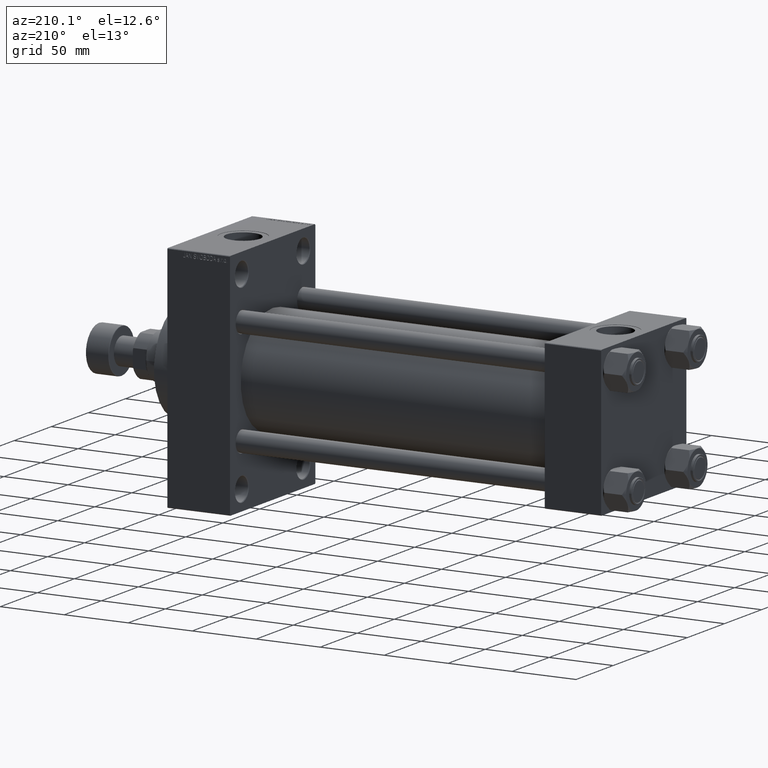
[diagram: clean part render]
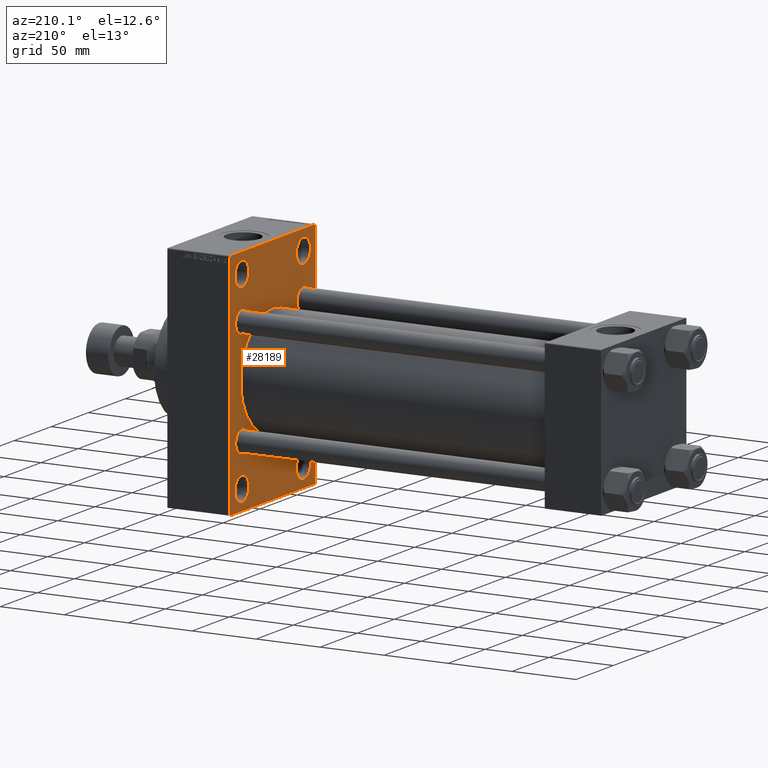
[diagram: same view with one face highlighted and labeled with its STEP entity id]
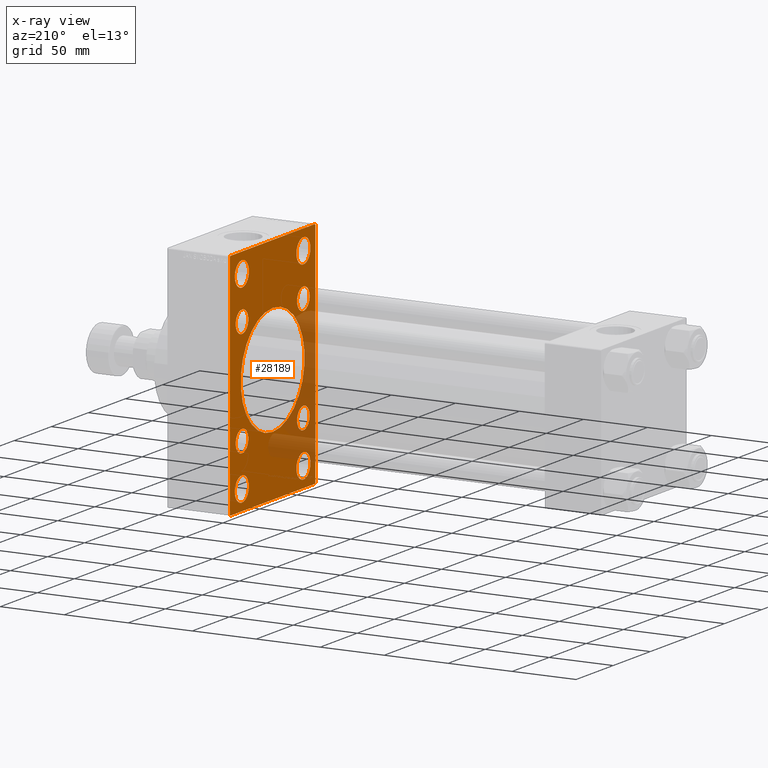
[diagram: x-ray of the same camera — body ghosted, the highlighted face saturated]
A machine part, auxiliary view. The second image highlights one B-rep face of the part: STEP entity #28189.
The next image is the same camera in x-ray: the body ghosted, the highlighted face saturated — about 21% of this face is hidden behind the body in this view.
In plain terms, the highlighted planar face has unit normal (-1, 0, 0).
Its self-contained STEP definition (entity closure, byte-faithful):
#112 = EDGE_CURVE ( 'NONE', #5302, #14758, #37099, .T. ) ;
#1189 = CARTESIAN_POINT ( 'NONE',  ( 290.0000000000000000, 57.00000000000003553, -90.00000000000000000 ) ) ;
#1723 = VERTEX_POINT ( 'NONE', #46791 ) ;
#1791 = CIRCLE ( 'NONE', #32092, 8.500000000000007105 ) ;
#1809 = DIRECTION ( 'NONE',  ( 1.000000000000000000, -0.000000000000000000, 0.000000000000000000 ) ) ;
#2068 = CARTESIAN_POINT ( 'NONE',  ( 290.0000000000000000, -57.50000000000002132, 89.49999999999997158 ) ) ;
#2081 = VECTOR ( 'NONE', #16700, 1000.000000000000000 ) ;
#2146 = CIRCLE ( 'NONE', #31684, 9.500000000000008882 ) ;
#2212 = CARTESIAN_POINT ( 'NONE',  ( 290.0000000000000000, -41.49999999999999289, -83.99999999999998579 ) ) ;
#2474 = VERTEX_POINT ( 'NONE', #38495 ) ;
#2723 = CARTESIAN_POINT ( 'NONE',  ( 290.0000000000000000, 57.49999999999997868, -90.00000000000000000 ) ) ;
#3120 = EDGE_CURVE ( 'NONE', #4985, #4850, #21633, .T. ) ;
#3144 = DIRECTION ( 'NONE',  ( 0.000000000000000000, 0.000000000000000000, 1.000000000000000000 ) ) ;
#3408 = CIRCLE ( 'NONE', #8869, 43.00000000000000000 ) ;
#3575 = ORIENTED_EDGE ( 'NONE', *, *, #37290, .T. ) ;
#3631 = ORIENTED_EDGE ( 'NONE', *, *, #45158, .T. ) ;
#3654 = CARTESIAN_POINT ( 'NONE',  ( 290.0000000000000000, -41.49999999999999289, 74.50000000000001421 ) ) ;
#3697 = CARTESIAN_POINT ( 'NONE',  ( 290.0000000000000000, -2.602085213965210642E-15, 43.00000000000000000 ) ) ;
#3774 = CARTESIAN_POINT ( 'NONE',  ( 290.0000000000000000, 57.49999999999997868, -89.49999999999995737 ) ) ;
#3799 = VERTEX_POINT ( 'NONE', #19931 ) ;
#3848 = DIRECTION ( 'NONE',  ( 1.000000000000000000, -0.000000000000000000, 0.000000000000000000 ) ) ;
#3999 = EDGE_CURVE ( 'NONE', #10457, #6478, #14065, .T. ) ;
#4810 = CARTESIAN_POINT ( 'NONE',  ( 290.0000000000000000, 2.663896022368408223E-15, -43.00000000000000000 ) ) ;
#4850 = VERTEX_POINT ( 'NONE', #40137 ) ;
#4851 = CIRCLE ( 'NONE', #34380, 43.00000000000000000 ) ;
#4985 = VERTEX_POINT ( 'NONE', #5052 ) ;
#5052 = CARTESIAN_POINT ( 'NONE',  ( 290.0000000000000000, -41.34999999999998721, 32.85000000000000142 ) ) ;
#5265 = EDGE_LOOP ( 'NONE', ( #11016, #26214 ) ) ;
#5281 = DIRECTION ( 'NONE',  ( 1.000000000000000000, -0.000000000000000000, 0.000000000000000000 ) ) ;
#5302 = VERTEX_POINT ( 'NONE', #21289 ) ;
#5744 = CIRCLE ( 'NONE', #27522, 8.500000000000007105 ) ;
#6028 = CARTESIAN_POINT ( 'NONE',  ( 290.0000000000000000, 41.50000000000000711, -84.00000000000000000 ) ) ;
#6478 = VERTEX_POINT ( 'NONE', #17586 ) ;
#6746 = DIRECTION ( 'NONE',  ( -1.000000000000000000, 0.000000000000000000, -0.000000000000000000 ) ) ;
#6853 = DIRECTION ( 'NONE',  ( 1.000000000000000000, -0.000000000000000000, 0.000000000000000000 ) ) ;
#6891 = DIRECTION ( 'NONE',  ( 1.000000000000000000, -0.000000000000000000, 0.000000000000000000 ) ) ;
#6932 = DIRECTION ( 'NONE',  ( 1.000000000000000000, -0.000000000000000000, 0.000000000000000000 ) ) ;
#6989 = FACE_BOUND ( 'NONE', #37343, .T. ) ;
#7258 = DIRECTION ( 'NONE',  ( 0.000000000000000000, -0.7071067811865965336, 0.7071067811864985009 ) ) ;
#7372 = CARTESIAN_POINT ( 'NONE',  ( 290.0000000000000000, 73.49999999999678835, 73.50000000000494538 ) ) ;
#7437 = VERTEX_POINT ( 'NONE', #2212 ) ;
#7570 = LINE ( 'NONE', #33603, #35908 ) ;
#7655 = VERTEX_POINT ( 'NONE', #1189 ) ;
#7755 = CARTESIAN_POINT ( 'NONE',  ( 290.0000000000000000, 41.50000000000000711, 84.00000000000001421 ) ) ;
#7806 = CARTESIAN_POINT ( 'NONE',  ( 290.0000000000000000, 41.50000000000000711, 74.50000000000001421 ) ) ;
#7909 = ORIENTED_EDGE ( 'NONE', *, *, #48078, .T. ) ;
#8016 = DIRECTION ( 'NONE',  ( 0.000000000000000000, 0.000000000000000000, 1.000000000000000000 ) ) ;
#8027 = DIRECTION ( 'NONE',  ( 0.000000000000000000, 0.000000000000000000, -1.000000000000000000 ) ) ;
#8047 = DIRECTION ( 'NONE',  ( 0.000000000000000000, 0.000000000000000000, 1.000000000000000000 ) ) ;
#8448 = EDGE_CURVE ( 'NONE', #28603, #39324, #39609, .T. ) ;
#8633 = CARTESIAN_POINT ( 'NONE',  ( 290.0000000000000000, -41.34999999999998721, 41.35000000000000853 ) ) ;
#8869 = AXIS2_PLACEMENT_3D ( 'NONE', #42320, #42081, #8027 ) ;
#9058 = ORIENTED_EDGE ( 'NONE', *, *, #8448, .T. ) ;
#9397 = EDGE_CURVE ( 'NONE', #7655, #23813, #36776, .T. ) ;
#9555 = ORIENTED_EDGE ( 'NONE', *, *, #15463, .T. ) ;
#9913 = FACE_BOUND ( 'NONE', #35002, .T. ) ;
#10399 = PLANE ( 'NONE',  #43693 ) ;
#10457 = VERTEX_POINT ( 'NONE', #2068 ) ;
#10749 = DIRECTION ( 'NONE',  ( 0.000000000000000000, -1.000000000000000000, -1.206764157201257045E-16 ) ) ;
#10999 = VECTOR ( 'NONE', #24368, 1000.000000000000000 ) ;
#11016 = ORIENTED_EDGE ( 'NONE', *, *, #46125, .T. ) ;
#11089 = EDGE_CURVE ( 'NONE', #1723, #37883, #17939, .T. ) ;
#11197 = VERTEX_POINT ( 'NONE', #11256 ) ;
#11256 = CARTESIAN_POINT ( 'NONE',  ( 290.0000000000000000, -41.49999999999999289, -64.99999999999997158 ) ) ;
#11895 = CARTESIAN_POINT ( 'NONE',  ( 290.0000000000000000, -41.49999999999999289, -74.49999999999998579 ) ) ;
#12257 = AXIS2_PLACEMENT_3D ( 'NONE', #3654, #18494, #28984 ) ;
#12595 = DIRECTION ( 'NONE',  ( -0.000000000000000000, -0.7071067811865181518, -0.7071067811865769936 ) ) ;
#13096 = AXIS2_PLACEMENT_3D ( 'NONE', #11895, #37935, #8016 ) ;
#13246 = CARTESIAN_POINT ( 'NONE',  ( 290.0000000000000000, 41.34999999999999432, -32.84999999999999432 ) ) ;
#13395 = ORIENTED_EDGE ( 'NONE', *, *, #14474, .T. ) ;
#13933 = AXIS2_PLACEMENT_3D ( 'NONE', #48121, #26929, #37156 ) ;
#14065 = LINE ( 'NONE', #17961, #19229 ) ;
#14381 = DIRECTION ( 'NONE',  ( 1.000000000000000000, 0.000000000000000000, 0.000000000000000000 ) ) ;
#14474 = EDGE_CURVE ( 'NONE', #27858, #44591, #7570, .T. ) ;
#14560 = DIRECTION ( 'NONE',  ( 1.000000000000000000, -0.000000000000000000, 0.000000000000000000 ) ) ;
#14758 = VERTEX_POINT ( 'NONE', #7755 ) ;
#14906 = DIRECTION ( 'NONE',  ( 1.000000000000000000, -0.000000000000000000, 0.000000000000000000 ) ) ;
#15144 = ORIENTED_EDGE ( 'NONE', *, *, #21258, .T. ) ;
#15463 = EDGE_CURVE ( 'NONE', #43879, #47506, #4851, .T. ) ;
#15849 = LINE ( 'NONE', #7372, #10999 ) ;
#16142 = CIRCLE ( 'NONE', #12257, 9.500000000000008882 ) ;
#16700 = DIRECTION ( 'NONE',  ( -0.000000000000000000, 0.7071067811865131558, 0.7071067811865818786 ) ) ;
#17108 = ORIENTED_EDGE ( 'NONE', *, *, #43138, .T. ) ;
#17125 = EDGE_CURVE ( 'NONE', #3799, #27858, #15849, .T. ) ;
#17151 = CARTESIAN_POINT ( 'NONE',  ( 290.0000000000000000, -41.34999999999998721, 41.35000000000000853 ) ) ;
#17199 = CARTESIAN_POINT ( 'NONE',  ( 290.0000000000000000, 41.50000000000000711, -64.99999999999998579 ) ) ;
#17454 = FACE_BOUND ( 'NONE', #5265, .T. ) ;
#17586 = CARTESIAN_POINT ( 'NONE',  ( 290.0000000000000000, -57.50000000000002132, -89.50000000000002842 ) ) ;
#17939 = CIRCLE ( 'NONE', #46681, 9.500000000000008882 ) ;
#17961 = CARTESIAN_POINT ( 'NONE',  ( 290.0000000000000000, -57.50000000000002132, 89.99999999999997158 ) ) ;
#18096 = VECTOR ( 'NONE', #7258, 1000.000000000000114 ) ;
#18178 = DIRECTION ( 'NONE',  ( 0.000000000000000000, 0.000000000000000000, 1.000000000000000000 ) ) ;
#18429 = EDGE_LOOP ( 'NONE', ( #39269, #26090, #41008, #17108, #23858, #36019, #13395, #28318 ) ) ;
#18494 = DIRECTION ( 'NONE',  ( 1.000000000000000000, -0.000000000000000000, 0.000000000000000000 ) ) ;
#18645 = FACE_BOUND ( 'NONE', #22385, .T. ) ;
#18756 = DIRECTION ( 'NONE',  ( 0.000000000000000000, 0.000000000000000000, -1.000000000000000000 ) ) ;
#19229 = VECTOR ( 'NONE', #33058, 1000.000000000000000 ) ;
#19470 = DIRECTION ( 'NONE',  ( 0.000000000000000000, 3.854941057726238467E-17, -1.000000000000000000 ) ) ;
#19760 = CARTESIAN_POINT ( 'NONE',  ( 290.0000000000000000, -57.00000000000007105, 89.99999999999997158 ) ) ;
#19893 = CARTESIAN_POINT ( 'NONE',  ( 290.0000000000000000, 73.50000000000240163, -73.49999999999627676 ) ) ;
#19931 = CARTESIAN_POINT ( 'NONE',  ( 290.0000000000000000, 56.99999999999992184, 89.99999999999998579 ) ) ;
#20051 = AXIS2_PLACEMENT_3D ( 'NONE', #43285, #47166, #18178 ) ;
#20273 = ORIENTED_EDGE ( 'NONE', *, *, #37226, .T. ) ;
#20516 = EDGE_CURVE ( 'NONE', #44335, #2474, #1791, .T. ) ;
#20637 = EDGE_CURVE ( 'NONE', #44591, #7655, #38405, .T. ) ;
#20824 = ORIENTED_EDGE ( 'NONE', *, *, #28628, .T. ) ;
#20872 = VERTEX_POINT ( 'NONE', #44469 ) ;
#20923 = CIRCLE ( 'NONE', #34125, 9.500000000000008882 ) ;
#21130 = CIRCLE ( 'NONE', #25791, 8.500000000000007105 ) ;
#21258 = EDGE_CURVE ( 'NONE', #7437, #11197, #41880, .T. ) ;
#21289 = CARTESIAN_POINT ( 'NONE',  ( 290.0000000000000000, 41.50000000000000711, 65.00000000000000000 ) ) ;
#21623 = EDGE_CURVE ( 'NONE', #2474, #44335, #38022, .T. ) ;
#21633 = CIRCLE ( 'NONE', #35514, 8.500000000000007105 ) ;
#21689 = DIRECTION ( 'NONE',  ( 0.000000000000000000, 0.000000000000000000, 1.000000000000000000 ) ) ;
#21696 = CARTESIAN_POINT ( 'NONE',  ( 290.0000000000000000, -2.602085213965210642E-15, 0.000000000000000000 ) ) ;
#21768 = DIRECTION ( 'NONE',  ( 0.000000000000000000, 0.000000000000000000, 1.000000000000000000 ) ) ;
#21826 = CARTESIAN_POINT ( 'NONE',  ( 290.0000000000000000, 0.000000000000000000, 0.000000000000000000 ) ) ;
#22307 = EDGE_CURVE ( 'NONE', #28073, #23182, #20923, .T. ) ;
#22385 = EDGE_LOOP ( 'NONE', ( #25863, #29921 ) ) ;
#22761 = AXIS2_PLACEMENT_3D ( 'NONE', #29528, #14906, #29772 ) ;
#22936 = ORIENTED_EDGE ( 'NONE', *, *, #27127, .T. ) ;
#23182 = VERTEX_POINT ( 'NONE', #17199 ) ;
#23224 = LINE ( 'NONE', #37822, #18096 ) ;
#23392 = AXIS2_PLACEMENT_3D ( 'NONE', #17151, #43211, #42238 ) ;
#23479 = DIRECTION ( 'NONE',  ( 0.000000000000000000, 0.000000000000000000, 1.000000000000000000 ) ) ;
#23813 = VERTEX_POINT ( 'NONE', #39734 ) ;
#23858 = ORIENTED_EDGE ( 'NONE', *, *, #44662, .F. ) ;
#24368 = DIRECTION ( 'NONE',  ( 0.000000000000000000, 0.7071067811865867636, -0.7071067811865081598 ) ) ;
#24984 = LINE ( 'NONE', #39354, #2081 ) ;
#25086 = EDGE_LOOP ( 'NONE', ( #28673, #28837 ) ) ;
#25425 = CARTESIAN_POINT ( 'NONE',  ( 290.0000000000000000, 41.34999999999999432, 41.35000000000000142 ) ) ;
#25477 = FACE_OUTER_BOUND ( 'NONE', #18429, .T. ) ;
#25791 = AXIS2_PLACEMENT_3D ( 'NONE', #25425, #6932, #21768 ) ;
#25863 = ORIENTED_EDGE ( 'NONE', *, *, #26749, .T. ) ;
#25870 = DIRECTION ( 'NONE',  ( 0.000000000000000000, 0.000000000000000000, 1.000000000000000000 ) ) ;
#25965 = FACE_BOUND ( 'NONE', #38642, .T. ) ;
#26090 = ORIENTED_EDGE ( 'NONE', *, *, #30625, .T. ) ;
#26214 = ORIENTED_EDGE ( 'NONE', *, *, #22307, .T. ) ;
#26330 = CARTESIAN_POINT ( 'NONE',  ( 290.0000000000000000, 41.50000000000000711, 74.50000000000001421 ) ) ;
#26749 = EDGE_CURVE ( 'NONE', #4850, #4985, #28855, .T. ) ;
#26929 = DIRECTION ( 'NONE',  ( 1.000000000000000000, -0.000000000000000000, 0.000000000000000000 ) ) ;
#27127 = EDGE_CURVE ( 'NONE', #14758, #5302, #37423, .T. ) ;
#27460 = DIRECTION ( 'NONE',  ( 1.000000000000000000, -0.000000000000000000, 0.000000000000000000 ) ) ;
#27522 = AXIS2_PLACEMENT_3D ( 'NONE', #40894, #37221, #40408 ) ;
#27858 = VERTEX_POINT ( 'NONE', #38534 ) ;
#28073 = VERTEX_POINT ( 'NONE', #6028 ) ;
#28189 = ADVANCED_FACE ( 'NONE', ( #28417, #9913, #17454, #39615, #18645, #6989, #36182, #40096, #25965, #25477 ), #10399, .T. ) ;
#28318 = ORIENTED_EDGE ( 'NONE', *, *, #20637, .T. ) ;
#28417 = FACE_BOUND ( 'NONE', #28468, .T. ) ;
#28468 = EDGE_LOOP ( 'NONE', ( #38332, #3631 ) ) ;
#28603 = VERTEX_POINT ( 'NONE', #43689 ) ;
#28621 = CIRCLE ( 'NONE', #20051, 8.500000000000007105 ) ;
#28628 = EDGE_CURVE ( 'NONE', #30927, #20872, #21130, .T. ) ;
#28673 = ORIENTED_EDGE ( 'NONE', *, *, #20516, .T. ) ;
#28837 = ORIENTED_EDGE ( 'NONE', *, *, #21623, .T. ) ;
#28855 = CIRCLE ( 'NONE', #23392, 8.500000000000007105 ) ;
#28984 = DIRECTION ( 'NONE',  ( 0.000000000000000000, 0.000000000000000000, 1.000000000000000000 ) ) ;
#29066 = ORIENTED_EDGE ( 'NONE', *, *, #112, .T. ) ;
#29528 = CARTESIAN_POINT ( 'NONE',  ( 290.0000000000000000, -41.49999999999999289, -74.49999999999998579 ) ) ;
#29647 = AXIS2_PLACEMENT_3D ( 'NONE', #26330, #27460, #41414 ) ;
#29772 = DIRECTION ( 'NONE',  ( 0.000000000000000000, 0.000000000000000000, 1.000000000000000000 ) ) ;
#29921 = ORIENTED_EDGE ( 'NONE', *, *, #3120, .T. ) ;
#30562 = ORIENTED_EDGE ( 'NONE', *, *, #33174, .T. ) ;
#30625 = EDGE_CURVE ( 'NONE', #23813, #6478, #23224, .T. ) ;
#30927 = VERTEX_POINT ( 'NONE', #31432 ) ;
#30949 = CARTESIAN_POINT ( 'NONE',  ( 290.0000000000000000, -41.49999999999999289, 65.00000000000000000 ) ) ;
#31077 = VECTOR ( 'NONE', #10749, 1000.000000000000000 ) ;
#31080 = DIRECTION ( 'NONE',  ( 0.000000000000000000, 0.000000000000000000, 1.000000000000000000 ) ) ;
#31328 = CARTESIAN_POINT ( 'NONE',  ( 290.0000000000000000, 41.50000000000000711, -74.50000000000000000 ) ) ;
#31432 = CARTESIAN_POINT ( 'NONE',  ( 290.0000000000000000, 41.34999999999999432, 49.85000000000001563 ) ) ;
#31684 = AXIS2_PLACEMENT_3D ( 'NONE', #37185, #3848, #47428 ) ;
#31771 = VECTOR ( 'NONE', #12595, 1000.000000000000000 ) ;
#32092 = AXIS2_PLACEMENT_3D ( 'NONE', #36475, #14560, #3144 ) ;
#33058 = DIRECTION ( 'NONE',  ( 0.000000000000000000, 0.000000000000000000, -1.000000000000000000 ) ) ;
#33174 = EDGE_CURVE ( 'NONE', #11197, #7437, #43753, .T. ) ;
#33270 = VERTEX_POINT ( 'NONE', #19760 ) ;
#33526 = EDGE_LOOP ( 'NONE', ( #7909, #9058 ) ) ;
#33603 = CARTESIAN_POINT ( 'NONE',  ( 290.0000000000000000, 57.49999999999997158, 89.99999999999998579 ) ) ;
#34125 = AXIS2_PLACEMENT_3D ( 'NONE', #31328, #5281, #31080 ) ;
#34380 = AXIS2_PLACEMENT_3D ( 'NONE', #21696, #14381, #18756 ) ;
#35002 = EDGE_LOOP ( 'NONE', ( #30562, #15144 ) ) ;
#35514 = AXIS2_PLACEMENT_3D ( 'NONE', #8633, #1809, #23479 ) ;
#35908 = VECTOR ( 'NONE', #19470, 1000.000000000000000 ) ;
#36019 = ORIENTED_EDGE ( 'NONE', *, *, #17125, .T. ) ;
#36182 = FACE_BOUND ( 'NONE', #25086, .T. ) ;
#36288 = CARTESIAN_POINT ( 'NONE',  ( 290.0000000000000000, -41.34999999999998721, -41.35000000000000853 ) ) ;
#36290 = CARTESIAN_POINT ( 'NONE',  ( 290.0000000000000000, -41.34999999999998721, -32.85000000000000142 ) ) ;
#36475 = CARTESIAN_POINT ( 'NONE',  ( 290.0000000000000000, 41.34999999999999432, -41.35000000000000142 ) ) ;
#36776 = LINE ( 'NONE', #2723, #31077 ) ;
#37099 = CIRCLE ( 'NONE', #41768, 9.500000000000008882 ) ;
#37156 = DIRECTION ( 'NONE',  ( 0.000000000000000000, 0.000000000000000000, 1.000000000000000000 ) ) ;
#37185 = CARTESIAN_POINT ( 'NONE',  ( 290.0000000000000000, 41.50000000000000711, -74.50000000000000000 ) ) ;
#37221 = DIRECTION ( 'NONE',  ( 1.000000000000000000, -0.000000000000000000, 0.000000000000000000 ) ) ;
#37226 = EDGE_CURVE ( 'NONE', #20872, #30927, #5744, .T. ) ;
#37262 = AXIS2_PLACEMENT_3D ( 'NONE', #36288, #6853, #21689 ) ;
#37290 = EDGE_CURVE ( 'NONE', #47506, #43879, #3408, .T. ) ;
#37343 = EDGE_LOOP ( 'NONE', ( #20824, #20273 ) ) ;
#37423 = CIRCLE ( 'NONE', #29647, 9.500000000000008882 ) ;
#37488 = DIRECTION ( 'NONE',  ( 1.000000000000000000, -0.000000000000000000, 0.000000000000000000 ) ) ;
#37822 = CARTESIAN_POINT ( 'NONE',  ( 290.0000000000000000, -73.49999999999603517, -73.50000000000625278 ) ) ;
#37883 = VERTEX_POINT ( 'NONE', #30949 ) ;
#37935 = DIRECTION ( 'NONE',  ( 1.000000000000000000, -0.000000000000000000, 0.000000000000000000 ) ) ;
#38022 = CIRCLE ( 'NONE', #13933, 8.500000000000007105 ) ;
#38075 = LINE ( 'NONE', #42702, #47181 ) ;
#38332 = ORIENTED_EDGE ( 'NONE', *, *, #11089, .T. ) ;
#38405 = LINE ( 'NONE', #19893, #31771 ) ;
#38495 = CARTESIAN_POINT ( 'NONE',  ( 290.0000000000000000, 41.34999999999999432, -49.85000000000001563 ) ) ;
#38534 = CARTESIAN_POINT ( 'NONE',  ( 290.0000000000000000, 57.49999999999997158, 89.49999999999998579 ) ) ;
#38642 = EDGE_LOOP ( 'NONE', ( #3575, #9555 ) ) ;
#38801 = DIRECTION ( 'NONE',  ( 0.000000000000000000, -1.000000000000000000, -1.206764157201257291E-16 ) ) ;
#39269 = ORIENTED_EDGE ( 'NONE', *, *, #9397, .T. ) ;
#39324 = VERTEX_POINT ( 'NONE', #36290 ) ;
#39354 = CARTESIAN_POINT ( 'NONE',  ( 290.0000000000000000, -73.50000000000278533, 73.49999999999565148 ) ) ;
#39609 = CIRCLE ( 'NONE', #37262, 8.500000000000007105 ) ;
#39615 = FACE_BOUND ( 'NONE', #44853, .T. ) ;
#39734 = CARTESIAN_POINT ( 'NONE',  ( 290.0000000000000000, -57.00000000000002132, -90.00000000000001421 ) ) ;
#40096 = FACE_BOUND ( 'NONE', #33526, .T. ) ;
#40137 = CARTESIAN_POINT ( 'NONE',  ( 290.0000000000000000, -41.34999999999998721, 49.85000000000002274 ) ) ;
#40408 = DIRECTION ( 'NONE',  ( 0.000000000000000000, 0.000000000000000000, 1.000000000000000000 ) ) ;
#40894 = CARTESIAN_POINT ( 'NONE',  ( 290.0000000000000000, 41.34999999999999432, 41.35000000000000142 ) ) ;
#41008 = ORIENTED_EDGE ( 'NONE', *, *, #3999, .F. ) ;
#41414 = DIRECTION ( 'NONE',  ( 0.000000000000000000, 0.000000000000000000, 1.000000000000000000 ) ) ;
#41768 = AXIS2_PLACEMENT_3D ( 'NONE', #7806, #37488, #8047 ) ;
#41880 = CIRCLE ( 'NONE', #13096, 9.500000000000008882 ) ;
#42081 = DIRECTION ( 'NONE',  ( 1.000000000000000000, 0.000000000000000000, 0.000000000000000000 ) ) ;
#42238 = DIRECTION ( 'NONE',  ( 0.000000000000000000, 0.000000000000000000, 1.000000000000000000 ) ) ;
#42320 = CARTESIAN_POINT ( 'NONE',  ( 290.0000000000000000, -2.602085213965210642E-15, 0.000000000000000000 ) ) ;
#42702 = CARTESIAN_POINT ( 'NONE',  ( 290.0000000000000000, 57.49999999999997158, 89.99999999999998579 ) ) ;
#43138 = EDGE_CURVE ( 'NONE', #10457, #33270, #24984, .T. ) ;
#43211 = DIRECTION ( 'NONE',  ( 1.000000000000000000, -0.000000000000000000, 0.000000000000000000 ) ) ;
#43285 = CARTESIAN_POINT ( 'NONE',  ( 290.0000000000000000, -41.34999999999998721, -41.35000000000000853 ) ) ;
#43507 = DIRECTION ( 'NONE',  ( -0.000000000000000000, 0.000000000000000000, 1.000000000000000000 ) ) ;
#43689 = CARTESIAN_POINT ( 'NONE',  ( 290.0000000000000000, -41.34999999999998721, -49.85000000000002274 ) ) ;
#43693 = AXIS2_PLACEMENT_3D ( 'NONE', #21826, #6746, #43507 ) ;
#43753 = CIRCLE ( 'NONE', #22761, 9.500000000000008882 ) ;
#43879 = VERTEX_POINT ( 'NONE', #4810 ) ;
#44335 = VERTEX_POINT ( 'NONE', #13246 ) ;
#44469 = CARTESIAN_POINT ( 'NONE',  ( 290.0000000000000000, 41.34999999999999432, 32.84999999999999432 ) ) ;
#44591 = VERTEX_POINT ( 'NONE', #3774 ) ;
#44604 = CARTESIAN_POINT ( 'NONE',  ( 290.0000000000000000, -41.49999999999999289, 74.50000000000001421 ) ) ;
#44662 = EDGE_CURVE ( 'NONE', #3799, #33270, #38075, .T. ) ;
#44853 = EDGE_LOOP ( 'NONE', ( #22936, #29066 ) ) ;
#45158 = EDGE_CURVE ( 'NONE', #37883, #1723, #16142, .T. ) ;
#46125 = EDGE_CURVE ( 'NONE', #23182, #28073, #2146, .T. ) ;
#46681 = AXIS2_PLACEMENT_3D ( 'NONE', #44604, #6891, #25870 ) ;
#46791 = CARTESIAN_POINT ( 'NONE',  ( 290.0000000000000000, -41.49999999999999289, 84.00000000000001421 ) ) ;
#47166 = DIRECTION ( 'NONE',  ( 1.000000000000000000, -0.000000000000000000, 0.000000000000000000 ) ) ;
#47181 = VECTOR ( 'NONE', #38801, 1000.000000000000000 ) ;
#47428 = DIRECTION ( 'NONE',  ( 0.000000000000000000, 0.000000000000000000, 1.000000000000000000 ) ) ;
#47506 = VERTEX_POINT ( 'NONE', #3697 ) ;
#48078 = EDGE_CURVE ( 'NONE', #39324, #28603, #28621, .T. ) ;
#48121 = CARTESIAN_POINT ( 'NONE',  ( 290.0000000000000000, 41.34999999999999432, -41.35000000000000142 ) ) ;